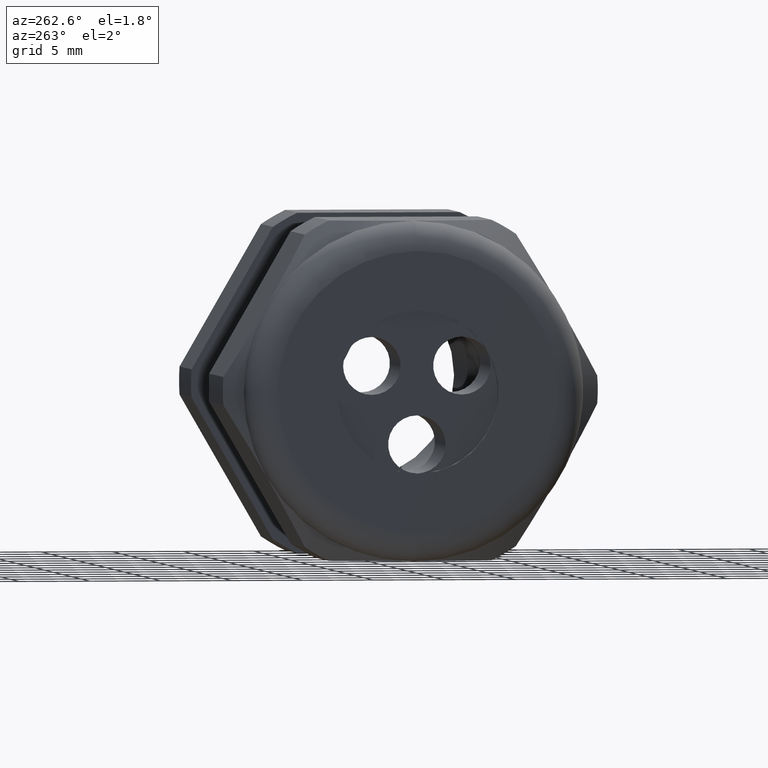
[diagram: clean part render]
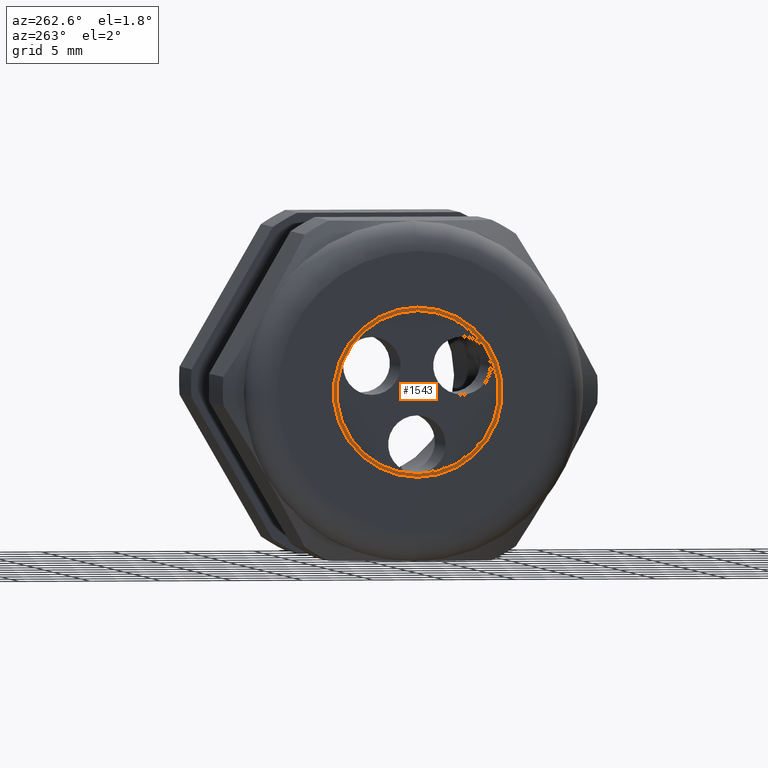
[diagram: same view with one face highlighted and labeled with its STEP entity id]
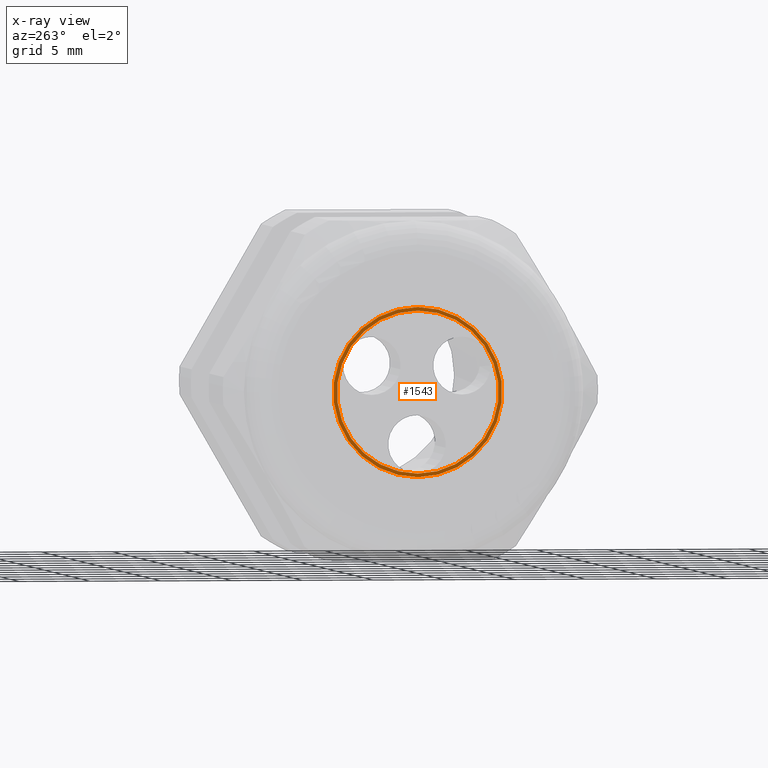
[diagram: x-ray of the same camera — body ghosted, the highlighted face saturated]
A machine part, auxiliary view. The second image highlights one B-rep face of the part: STEP entity #1543.
The next image is the same camera in x-ray: the body ghosted, the highlighted face saturated — about 0% of this face is hidden behind the body in this view.
In plain terms, the highlighted planar face has unit normal (-1, 0, 0).
Its self-contained STEP definition (entity closure, byte-faithful):
#1532 = ORIENTED_EDGE ( 'NONE', *, *, #1687, .T. ) ;
#1534 = ORIENTED_EDGE ( 'NONE', *, *, #1707, .F. ) ;
#1535 = EDGE_LOOP ( 'NONE', ( #1536, #1532 ) ) ;
#1536 = ORIENTED_EDGE ( 'NONE', *, *, #1669, .T. ) ;
#1538 = ORIENTED_EDGE ( 'NONE', *, *, #1539, .F. ) ;
#1539 = EDGE_CURVE ( 'NONE', #1682, #1681, #4501, .T. ) ;
#1543 = ADVANCED_FACE ( 'NONE', ( #4496, #4495 ), #4494, .T. ) ;
#1544 = EDGE_LOOP ( 'NONE', ( #1538, #1534 ) ) ;
#1667 = VERTEX_POINT ( 'NONE', #4714 ) ;
#1669 = EDGE_CURVE ( 'NONE', #1670, #1667, #4713, .T. ) ;
#1670 = VERTEX_POINT ( 'NONE', #4708 ) ;
#1681 = VERTEX_POINT ( 'NONE', #4752 ) ;
#1682 = VERTEX_POINT ( 'NONE', #4751 ) ;
#1687 = EDGE_CURVE ( 'NONE', #1667, #1670, #4745, .T. ) ;
#1707 = EDGE_CURVE ( 'NONE', #1681, #1682, #4768, .T. ) ;
#4490 = DIRECTION ( 'NONE',  ( 0.0000000000000000000, 0.0000000000000000000, 1.000000000000000000 ) ) ;
#4491 = DIRECTION ( 'NONE',  ( -1.000000000000000000, 0.0000000000000000000, 0.0000000000000000000 ) ) ;
#4492 = CARTESIAN_POINT ( 'NONE',  ( -1.409999999999999900, 0.0000000000000000000, 0.0000000000000000000 ) ) ;
#4493 = AXIS2_PLACEMENT_3D ( 'NONE', #4492, #4491, #4490 ) ;
#4494 = PLANE ( 'NONE',  #4493 ) ;
#4495 = FACE_OUTER_BOUND ( 'NONE', #1535, .T. ) ;
#4496 = FACE_BOUND ( 'NONE', #1544, .T. ) ;
#4497 = DIRECTION ( 'NONE',  ( 0.0000000000000000000, 0.0000000000000000000, 1.000000000000000000 ) ) ;
#4498 = DIRECTION ( 'NONE',  ( -1.000000000000000000, 0.0000000000000000000, 0.0000000000000000000 ) ) ;
#4499 = CARTESIAN_POINT ( 'NONE',  ( -1.409999999999999900, 0.0000000000000000000, 0.0000000000000000000 ) ) ;
#4500 = AXIS2_PLACEMENT_3D ( 'NONE', #4499, #4498, #4497 ) ;
#4501 = CIRCLE ( 'NONE', #4500, 0.2249999999999999800 ) ;
#4708 = CARTESIAN_POINT ( 'NONE',  ( -1.409999999999999900, 0.0000000000000000000, 0.2349999999999999900 ) ) ;
#4709 = DIRECTION ( 'NONE',  ( 0.0000000000000000000, 0.0000000000000000000, 1.000000000000000000 ) ) ;
#4710 = DIRECTION ( 'NONE',  ( -1.000000000000000000, 0.0000000000000000000, 0.0000000000000000000 ) ) ;
#4711 = CARTESIAN_POINT ( 'NONE',  ( -1.409999999999999900, 0.0000000000000000000, 0.0000000000000000000 ) ) ;
#4712 = AXIS2_PLACEMENT_3D ( 'NONE', #4711, #4710, #4709 ) ;
#4713 = CIRCLE ( 'NONE', #4712, 0.2349999999999999900 ) ;
#4714 = CARTESIAN_POINT ( 'NONE',  ( -1.409999999999999900, 2.877919977996279800E-017, -0.2349999999999999900 ) ) ;
#4741 = DIRECTION ( 'NONE',  ( 0.0000000000000000000, 0.0000000000000000000, 1.000000000000000000 ) ) ;
#4742 = DIRECTION ( 'NONE',  ( -1.000000000000000000, 0.0000000000000000000, 0.0000000000000000000 ) ) ;
#4743 = CARTESIAN_POINT ( 'NONE',  ( -1.409999999999999900, 0.0000000000000000000, 0.0000000000000000000 ) ) ;
#4744 = AXIS2_PLACEMENT_3D ( 'NONE', #4743, #4742, #4741 ) ;
#4745 = CIRCLE ( 'NONE', #4744, 0.2349999999999999900 ) ;
#4751 = CARTESIAN_POINT ( 'NONE',  ( -1.409999999999999900, 0.0000000000000000000, 0.2249999999999999800 ) ) ;
#4752 = CARTESIAN_POINT ( 'NONE',  ( -1.409999999999999900, 2.755455298081544500E-017, -0.2249999999999999800 ) ) ;
#4764 = DIRECTION ( 'NONE',  ( 0.0000000000000000000, 0.0000000000000000000, 1.000000000000000000 ) ) ;
#4765 = DIRECTION ( 'NONE',  ( -1.000000000000000000, 0.0000000000000000000, 0.0000000000000000000 ) ) ;
#4766 = CARTESIAN_POINT ( 'NONE',  ( -1.409999999999999900, 0.0000000000000000000, 0.0000000000000000000 ) ) ;
#4767 = AXIS2_PLACEMENT_3D ( 'NONE', #4766, #4765, #4764 ) ;
#4768 = CIRCLE ( 'NONE', #4767, 0.2249999999999999800 ) ;